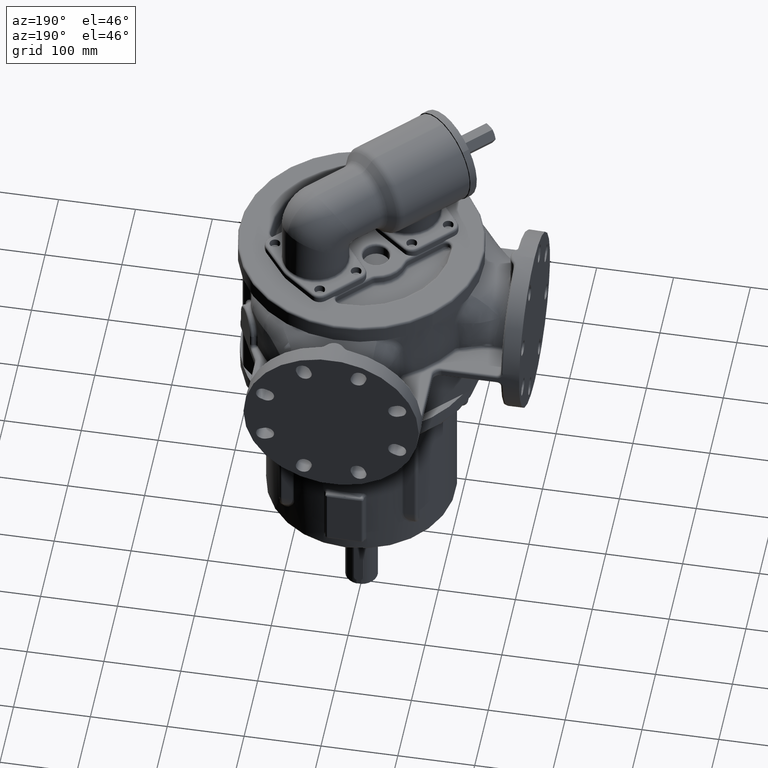
[diagram: clean part render]
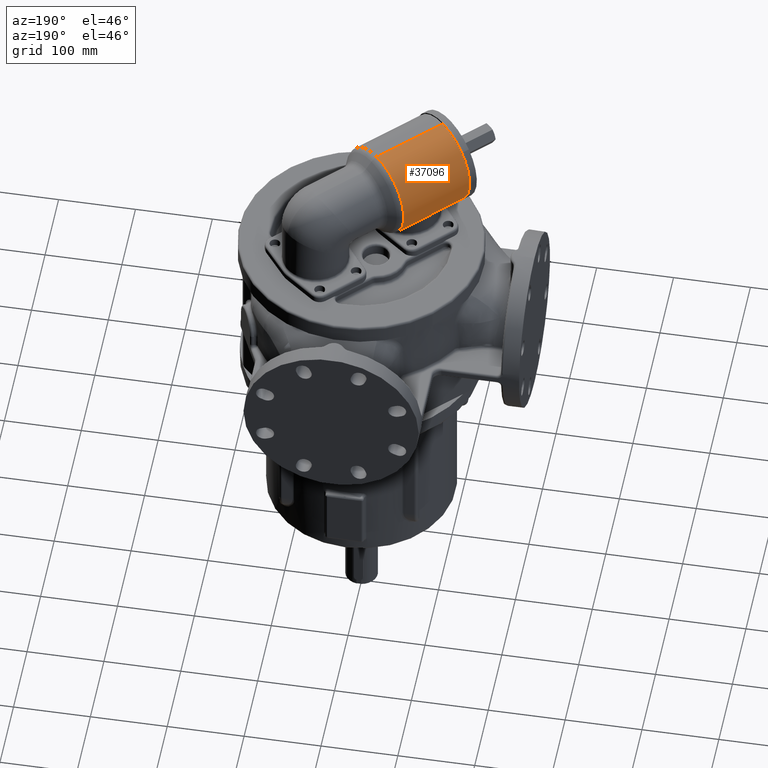
[diagram: same view with one face highlighted and labeled with its STEP entity id]
A machine part, auxiliary view. The second image highlights one B-rep face of the part: STEP entity #37096.
In plain terms, the highlighted cylindrical surface (partial cylindrical patch) has radius 60 mm, axis along (-0.7071, -0.7071, 0).
Its self-contained STEP definition (entity closure, byte-faithful):
#3801=CARTESIAN_POINT('',(-8.980256121069E1,-8.980256121069E1,2.82E2));
#3802=DIRECTION('',(-7.071067811865E-1,-7.071067811865E-1,0.E0));
#3803=DIRECTION('',(0.E0,0.E0,1.E0));
#3804=AXIS2_PLACEMENT_3D('',#3801,#3802,#3803);
#3806=DIRECTION('',(-7.071067811866E-1,-7.071067811865E-1,-1.407158833899E-10));
#3807=VECTOR('',#3806,8.E0);
#3808=CARTESIAN_POINT('',(-8.414570696120E1,-8.414570696120E1,
2.220000000011E2));
#3809=LINE('',#3808,#3807);
#3810=CARTESIAN_POINT('',(-1.767766952966E1,-1.767766952966E1,
2.220000000012E2));
#3811=CARTESIAN_POINT('',(-1.787476425812E1,-1.748057490932E1,
2.220000000251E2));
#3812=CARTESIAN_POINT('',(-1.827306282149E1,-1.709025577864E1,
2.220038846349E2));
#3813=CARTESIAN_POINT('',(-1.888275558777E1,-1.651651755162E1,
2.220213862247E2));
#3814=CARTESIAN_POINT('',(-1.950457816283E1,-1.595468830284E1,
2.220505791074E2));
#3815=CARTESIAN_POINT('',(-2.013851614066E1,-1.540484982666E1,
2.220914819572E2));
#3816=CARTESIAN_POINT('',(-2.078473426357E1,-1.486695904062E1,
2.221441326485E2));
#3817=CARTESIAN_POINT('',(-2.144330798580E1,-1.434108145134E1,
2.222085731498E2));
#3818=CARTESIAN_POINT('',(-2.211434841744E1,-1.382728027400E1,
2.222848548912E2));
#3819=CARTESIAN_POINT('',(-2.279798211488E1,-1.332563701110E1,
2.223730386285E2));
#3820=CARTESIAN_POINT('',(-2.349433848347E1,-1.283625986149E1,
2.224731921880E2));
#3821=CARTESIAN_POINT('',(-2.420355644043E1,-1.235927747240E1,
2.225853908174E2));
#3822=CARTESIAN_POINT('',(-2.492578094452E1,-1.189484272761E1,
2.227097160824E2));
#3823=CARTESIAN_POINT('',(-2.566116180063E1,-1.144313319597E1,
2.228462549644E2));
#3824=CARTESIAN_POINT('',(-2.640985190670E1,-1.100435183189E1,
2.229950987828E2));
#3825=CARTESIAN_POINT('',(-2.717200553765E1,-1.057872680341E1,
2.231563420934E2));
#3826=CARTESIAN_POINT('',(-2.794777668242E1,-1.016651331139E1,
2.233300811967E2));
#3827=CARTESIAN_POINT('',(-2.873731685008E1,-9.767994135064E0,
2.235164125312E2));
#3828=CARTESIAN_POINT('',(-2.954077276926E1,-9.383480024503E0,
2.237154308844E2));
#3829=CARTESIAN_POINT('',(-3.035828390792E1,-9.013309626426E0,
2.239272274597E2));
#3830=CARTESIAN_POINT('',(-3.118997972686E1,-8.657850940934E0,
2.241518873992E2));
#3831=CARTESIAN_POINT('',(-3.203597657703E1,-8.317501405217E0,
2.243894871823E2));
#3832=CARTESIAN_POINT('',(-3.289637445358E1,-7.992687730382E0,
2.246400917783E2));
#3833=CARTESIAN_POINT('',(-3.377125283108E1,-7.683865773007E0,
2.249037512954E2));
#3834=CARTESIAN_POINT('',(-3.466066654594E1,-7.391520999525E0,
2.251804971236E2));
#3835=CARTESIAN_POINT('',(-3.556464116587E1,-7.116167635402E0,
2.254703378439E2));
#3836=CARTESIAN_POINT('',(-3.648316813631E1,-6.858347379060E0,
2.257732548035E2));
#3837=CARTESIAN_POINT('',(-3.741619766835E1,-6.618628585574E0,
2.260891965222E2));
#3838=CARTESIAN_POINT('',(-3.836363283387E1,-6.397604686889E0,
2.264180730223E2));
#3839=CARTESIAN_POINT('',(-3.932532262666E1,-6.195891382647E0,
2.267597496908E2));
#3840=CARTESIAN_POINT('',(-4.030105468152E1,-6.014123061915E0,
2.271140407537E2));
#3841=CARTESIAN_POINT('',(-4.129054365946E1,-5.852949848131E0,
2.274807005815E2));
#3842=CARTESIAN_POINT('',(-4.229342348076E1,-5.713032196010E0,
2.278594161642E2));
#3843=CARTESIAN_POINT('',(-4.330923775254E1,-5.595034253053E0,
2.282497989027E2));
#3844=CARTESIAN_POINT('',(-4.433742990109E1,-5.499615933139E0,
2.286513762376E2));
#3845=CARTESIAN_POINT('',(-4.537732653766E1,-5.427425327189E0,
2.290635800741E2));
#3846=CARTESIAN_POINT('',(-4.642813002823E1,-5.379087089539E0,
2.294857393070E2));
#3847=CARTESIAN_POINT('',(-4.748890882611E1,-5.355189647743E0,
2.299170719752E2));
#3848=CARTESIAN_POINT('',(-4.855858833612E1,-5.356270826193E0,
2.303566783343E2));
#3849=CARTESIAN_POINT('',(-4.963593398985E1,-5.382803517962E0,
2.308035307087E2));
#3850=CARTESIAN_POINT('',(-5.071955405855E1,-5.435177451671E0,
2.312564735597E2));
#3851=CARTESIAN_POINT('',(-5.180789946286E1,-5.513681113156E0,
2.317142239706E2));
#3852=CARTESIAN_POINT('',(-5.289926606603E1,-5.618483295101E0,
2.321753751919E2));
#3853=CARTESIAN_POINT('',(-5.399179683223E1,-5.749616987051E0,
2.326384010224E2));
#3854=CARTESIAN_POINT('',(-5.508351023493E1,-5.906963604585E0,
2.331016753379E2));
#3855=CARTESIAN_POINT('',(-5.617232549925E1,-6.090241125929E0,
2.335634925573E2));
#3856=CARTESIAN_POINT('',(-5.725609185478E1,-6.298995976080E0,
2.340220922323E2));
#3857=CARTESIAN_POINT('',(-5.833262806539E1,-6.532604339497E0,
2.344756881843E2));
#3858=CARTESIAN_POINT('',(-5.939977617459E1,-6.790277690481E0,
2.349225074516E2));
#3859=CARTESIAN_POINT('',(-6.045544670537E1,-7.071075120560E0,
2.353608253751E2));
#3860=CARTESIAN_POINT('',(-6.149766388735E1,-7.373921918961E0,
2.357890003084E2));
#3861=CARTESIAN_POINT('',(-6.252462026375E1,-7.697641372334E0,
2.362055085644E2));
#3862=CARTESIAN_POINT('',(-6.353471022153E1,-8.040981505217E0,
2.366089713661E2));
#3863=CARTESIAN_POINT('',(-6.452655530752E1,-8.402645907398E0,
2.369981741970E2));
#3864=CARTESIAN_POINT('',(-6.549902416799E1,-8.781326468900E0,
2.373720803055E2));
#3865=CARTESIAN_POINT('',(-6.645125094893E1,-9.175740689636E0,
2.377298382787E2));
#3866=CARTESIAN_POINT('',(-6.738262074136E1,-9.584652520138E0,
2.380707760968E2));
#3867=CARTESIAN_POINT('',(-6.829275893683E1,-1.000689514822E1,
2.383943926587E2));
#3868=CARTESIAN_POINT('',(-6.918151441945E1,-1.044138972383E1,
2.387003443301E2));
#3869=CARTESIAN_POINT('',(-7.004894051962E1,-1.088716116125E1,
2.389884284405E2));
#3870=CARTESIAN_POINT('',(-7.089526302554E1,-1.134334229098E1,
2.392585626488E2));
#3871=CARTESIAN_POINT('',(-7.172085483577E1,-1.180917841560E1,
2.395107657206E2));
#3872=CARTESIAN_POINT('',(-7.252621034715E1,-1.228402887445E1,
2.397451379479E2));
#3873=CARTESIAN_POINT('',(-7.331191978381E1,-1.276736491374E1,
2.399618423117E2));
#3874=CARTESIAN_POINT('',(-7.407864552994E1,-1.325876446990E1,
2.401610879517E2));
#3875=CARTESIAN_POINT('',(-7.482710219010E1,-1.375790743751E1,
2.403431150939E2));
#3876=CARTESIAN_POINT('',(-7.555803989895E1,-1.426457068300E1,
2.405081819939E2));
#3877=CARTESIAN_POINT('',(-7.627222887923E1,-1.477862211036E1,
2.406565532447E2));
#3878=CARTESIAN_POINT('',(-7.697044687985E1,-1.530001360555E1,
2.407884910311E2));
#3879=CARTESIAN_POINT('',(-7.765346853879E1,-1.582877502627E1,
2.409042472246E2));
#3880=CARTESIAN_POINT('',(-7.832205691402E1,-1.636500950770E1,
2.410040563950E2));
#3881=CARTESIAN_POINT('',(-7.897695645929E1,-1.690888837620E1,
2.410881305740E2));
#3882=CARTESIAN_POINT('',(-7.961888706182E1,-1.746064664230E1,
2.411566548230E2));
#3883=CARTESIAN_POINT('',(-8.024853984983E1,-1.802057757859E1,
2.412097853261E2));
#3884=CARTESIAN_POINT('',(-8.086657326842E1,-1.858903015216E1,
2.412476460273E2));
#3885=CARTESIAN_POINT('',(-8.147360959440E1,-1.916640593780E1,
2.412703264953E2));
#3886=CARTESIAN_POINT('',(-8.207023197631E1,-1.975315607139E1,
2.412778806811E2));
#3887=CARTESIAN_POINT('',(-8.265698167353E1,-2.034977839745E1,
2.412703262042E2));
#3888=CARTESIAN_POINT('',(-8.323435651242E1,-2.095681411050E1,
2.412476454814E2));
#3889=CARTESIAN_POINT('',(-8.380280773572E1,-2.157484641486E1,
2.412097846011E2));
#3890=CARTESIAN_POINT('',(-8.436273714579E1,-2.220449779629E1,
2.411566540087E2));
#3891=CARTESIAN_POINT('',(-8.491449394786E1,-2.284642695217E1,
2.410881297492E2));
#3892=CARTESIAN_POINT('',(-8.545837147335E1,-2.350132509305E1,
2.410040556198E2));
#3893=CARTESIAN_POINT('',(-8.599460472271E1,-2.416991210295E1,
2.409042465533E2));
#3894=CARTESIAN_POINT('',(-8.652336503155E1,-2.485293245108E1,
2.407884905123E2));
#3895=CARTESIAN_POINT('',(-8.704475554478E1,-2.555114921657E1,
2.406565529175E2));
#3896=CARTESIAN_POINT('',(-8.755880612284E1,-2.626533704956E1,
2.405081818890E2));
#3897=CARTESIAN_POINT('',(-8.806546866789E1,-2.699627374525E1,
2.403431152192E2));
#3898=CARTESIAN_POINT('',(-8.856461103059E1,-2.774472945787E1,
2.401610883251E2));
#3899=CARTESIAN_POINT('',(-8.905601017535E1,-2.851145448290E1,
2.399618429045E2));
#3900=CARTESIAN_POINT('',(-8.953934607112E1,-2.929716357926E1,
2.397451386746E2));
#3901=CARTESIAN_POINT('',(-9.001419658120E1,-3.010251906443E1,
2.395107664940E2));
#3902=CARTESIAN_POINT('',(-9.048003272133E1,-3.092811078628E1,
2.392585634854E2));
#3903=CARTESIAN_POINT('',(-9.093621389730E1,-3.177443324928E1,
2.389884293276E2));
#3904=CARTESIAN_POINT('',(-9.138198548263E1,-3.264185950225E1,
2.387003452013E2));
#3905=CARTESIAN_POINT('',(-9.181648031511E1,-3.353061538865E1,
2.383943934184E2));
#3906=CARTESIAN_POINT('',(-9.223872326296E1,-3.444075417123E1,
2.380707766682E2));
#3907=CARTESIAN_POINT('',(-9.264763546593E1,-3.537212473886E1,
2.377298385795E2));
#3908=CARTESIAN_POINT('',(-9.304205009163E1,-3.632435247008E1,
2.373720802539E2));
#3909=CARTESIAN_POINT('',(-9.342073106319E1,-3.729682243248E1,
2.369981737142E2));
#3910=CARTESIAN_POINT('',(-9.378239586543E1,-3.828866874313E1,
2.366089703881E2));
#3911=CARTESIAN_POINT('',(-9.412573637010E1,-3.929876001491E1,
2.362055070420E2));
#3912=CARTESIAN_POINT('',(-9.444945614840E1,-4.032571776350E1,
2.357889982052E2));
#3913=CARTESIAN_POINT('',(-9.475230320459E1,-4.136793634131E1,
2.353608226678E2));
#3914=CARTESIAN_POINT('',(-9.503310082245E1,-4.242360825261E1,
2.349225041417E2));
#3915=CARTESIAN_POINT('',(-9.529077428698E1,-4.349075769656E1,
2.344756842903E2));
#3916=CARTESIAN_POINT('',(-9.552438268442E1,-4.456729517156E1,
2.340220877842E2));
#3917=CARTESIAN_POINT('',(-9.573313748560E1,-4.565106270076E1,
2.335634875949E2));
#3918=CARTESIAN_POINT('',(-9.591641488858E1,-4.673987903413E1,
2.331016699143E2));
#3919=CARTESIAN_POINT('',(-9.607376132494E1,-4.783159339130E1,
2.326383951970E2));
#3920=CARTESIAN_POINT('',(-9.620489477746E1,-4.892412499184E1,
2.321753690264E2));
#3921=CARTESIAN_POINT('',(-9.630969666647E1,-5.001549230673E1,
2.317142175269E2));
#3922=CARTESIAN_POINT('',(-9.638819999822E1,-5.110383830262E1,
2.312564669027E2));
#3923=CARTESIAN_POINT('',(-9.644057357325E1,-5.218745884720E1,
2.308035239005E2));
#3924=CARTESIAN_POINT('',(-9.646710588326E1,-5.326480486578E1,
2.303566714334E2));
#3925=CARTESIAN_POINT('',(-9.646818666190E1,-5.433448463456E1,
2.299170650357E2));
#3926=CARTESIAN_POINT('',(-9.644428881527E1,-5.539526359281E1,
2.294857323811E2));
#3927=CARTESIAN_POINT('',(-9.639595017253E1,-5.644606715305E1,
2.290635732086E2));
#3928=CARTESIAN_POINT('',(-9.632375916539E1,-5.748596377444E1,
2.286513694747E2));
#3929=CARTESIAN_POINT('',(-9.622834045157E1,-5.851415582806E1,
2.282497922800E2));
#3930=CARTESIAN_POINT('',(-9.611034213084E1,-5.952996993306E1,
2.278594097160E2));
#3931=CARTESIAN_POINT('',(-9.597042411871E1,-6.053284952225E1,
2.274806943368E2));
#3932=CARTESIAN_POINT('',(-9.580925056550E1,-6.152233820742E1,
2.271140347379E2));
#3933=CARTESIAN_POINT('',(-9.562748192808E1,-6.249806991308E1,
2.267597439255E2));
#3934=CARTESIAN_POINT('',(-9.542576833556E1,-6.345975930706E1,
2.264180675257E2));
#3935=CARTESIAN_POINT('',(-9.520474417634E1,-6.440719402920E1,
2.260891913083E2));
#3936=CARTESIAN_POINT('',(-9.496502515215E1,-6.534022307697E1,
2.257732498834E2));
#3937=CARTESIAN_POINT('',(-9.470720469643E1,-6.625874952568E1,
2.254703332259E2));
#3938=CARTESIAN_POINT('',(-9.443185116753E1,-6.716272359225E1,
2.251804928132E2));
#3939=CARTESIAN_POINT('',(-9.413950626162E1,-6.805213672594E1,
2.249037472945E2));
#3940=CARTESIAN_POINT('',(-9.383068420587E1,-6.892701449755E1,
2.246400880870E2));
#3941=CARTESIAN_POINT('',(-9.350587046789E1,-6.978741174639E1,
2.243894837984E2));
#3942=CARTESIAN_POINT('',(-9.316552090570E1,-7.063340795175E1,
2.241518843185E2));
#3943=CARTESIAN_POINT('',(-9.281006222717E1,-7.146510311161E1,
2.239272246753E2));
#3944=CARTESIAN_POINT('',(-9.243989187096E1,-7.228261357972E1,
2.237154283879E2));
#3945=CARTESIAN_POINT('',(-9.205537783825E1,-7.308606881934E1,
2.235164103129E2));
#3946=CARTESIAN_POINT('',(-9.165685877587E1,-7.387560830184E1,
2.233300792453E2));
#3947=CARTESIAN_POINT('',(-9.124464543026E1,-7.465137875777E1,
2.231563403959E2));
#3948=CARTESIAN_POINT('',(-9.081902058196E1,-7.541353169881E1,
2.229950973250E2));
#3949=CARTESIAN_POINT('',(-9.038023943289E1,-7.616222111619E1,
2.228462537312E2));
#3950=CARTESIAN_POINT('',(-8.992853014983E1,-7.689760128763E1,
2.227097150577E2));
#3951=CARTESIAN_POINT('',(-8.946409568456E1,-7.761982511065E1,
2.225853899841E2));
#3952=CARTESIAN_POINT('',(-8.898711360572E1,-7.832904239494E1,
2.224731915279E2));
#3953=CARTESIAN_POINT('',(-8.849773679702E1,-7.902539810248E1,
2.223730381229E2));
#3954=CARTESIAN_POINT('',(-8.799609391641E1,-7.970903113556E1,
2.222848545226E2));
#3955=CARTESIAN_POINT('',(-8.748229311840E1,-8.038007095391E1,
2.222085728937E2));
#3956=CARTESIAN_POINT('',(-8.695641598174E1,-8.103864401749E1,
2.221441324916E2));
#3957=CARTESIAN_POINT('',(-8.641852570361E1,-8.168486147445E1,
2.220914818776E2));
#3958=CARTESIAN_POINT('',(-8.586868742222E1,-8.231879919187E1,
2.220505790604E2));
#3959=CARTESIAN_POINT('',(-8.530685840707E1,-8.294062147649E1,
2.220213862049E2));
#3960=CARTESIAN_POINT('',(-8.473312047135E1,-8.355031391247E1,
2.220038846323E2));
#3961=CARTESIAN_POINT('',(-8.434280150524E1,-8.394861231179E1,
2.220000000245E2));
#3962=CARTESIAN_POINT('',(-8.414570696120E1,-8.414570696120E1,
2.220000000011E2));
#3964=DIRECTION('',(-7.071067811865E-1,-7.071067811865E-1,1.081389138139E-9));
#3965=VECTOR('',#3964,1.085786437627E0);
#3966=CARTESIAN_POINT('',(-1.690990257670E1,-1.690990257670E1,2.22E2));
#3967=LINE('',#3966,#3965);
#3968=CARTESIAN_POINT('',(-1.690990257670E1,-1.690990257670E1,2.82E2));
#3969=DIRECTION('',(7.071067811865E-1,7.071067811865E-1,0.E0));
#3970=DIRECTION('',(0.E0,0.E0,-1.E0));
#3971=AXIS2_PLACEMENT_3D('',#3968,#3969,#3970);
#3973=DIRECTION('',(-7.071067811865E-1,-7.071067811865E-1,0.E0));
#3974=VECTOR('',#3973,1.030857864376E2);
#3975=CARTESIAN_POINT('',(-1.690990257670E1,-1.690990257670E1,3.42E2));
#3976=LINE('',#3975,#3974);
#3987=CARTESIAN_POINT('',(-8.414570696120E1,-8.414570696120E1,
2.220000000011E2));
#26797=CARTESIAN_POINT('',(-1.690990257670E1,-1.690990257670E1,2.22E2));
#26799=VERTEX_POINT('',#26797);
#26805=CARTESIAN_POINT('',(-1.690990257670E1,-1.690990257670E1,3.42E2));
#26807=VERTEX_POINT('',#26805);
#26916=CARTESIAN_POINT('',(-1.767766952966E1,-1.767766952966E1,
2.220000000012E2));
#26917=VERTEX_POINT('',#26916);
#26934=CARTESIAN_POINT('',(-8.980256121069E1,-8.980256121069E1,2.22E2));
#26935=CARTESIAN_POINT('',(-8.980256121069E1,-8.980256121069E1,3.42E2));
#26936=VERTEX_POINT('',#26934);
#26937=VERTEX_POINT('',#26935);
#26938=VERTEX_POINT('',#3987);
#37078=CARTESIAN_POINT('',(2.315774708386E1,2.315774708386E1,2.82E2));
#37079=DIRECTION('',(-7.071067811865E-1,-7.071067811865E-1,0.E0));
#37080=DIRECTION('',(0.E0,0.E0,-1.E0));
#37081=AXIS2_PLACEMENT_3D('',#37078,#37079,#37080);
#37082=CYLINDRICAL_SURFACE('',#37081,6.E1);
#37084=ORIENTED_EDGE('',*,*,#37083,.T.);
#37086=ORIENTED_EDGE('',*,*,#37085,.F.);
#37088=ORIENTED_EDGE('',*,*,#37087,.F.);
#37090=ORIENTED_EDGE('',*,*,#37089,.F.);
#37091=ORIENTED_EDGE('',*,*,#37073,.T.);
#37093=ORIENTED_EDGE('',*,*,#37092,.T.);
#37094=EDGE_LOOP('',(#37084,#37086,#37088,#37090,#37091,#37093));
#37095=FACE_OUTER_BOUND('',#37094,.F.);
#37096=ADVANCED_FACE('',(#37095),#37082,.T.);
#3805=CIRCLE('',#3804,6.E1);
#3963=B_SPLINE_CURVE_WITH_KNOTS('',3,(#3810,#3811,#3812,#3813,#3814,#3815,#3816,
#3817,#3818,#3819,#3820,#3821,#3822,#3823,#3824,#3825,#3826,#3827,#3828,#3829,
#3830,#3831,#3832,#3833,#3834,#3835,#3836,#3837,#3838,#3839,#3840,#3841,#3842,
#3843,#3844,#3845,#3846,#3847,#3848,#3849,#3850,#3851,#3852,#3853,#3854,#3855,
#3856,#3857,#3858,#3859,#3860,#3861,#3862,#3863,#3864,#3865,#3866,#3867,#3868,
#3869,#3870,#3871,#3872,#3873,#3874,#3875,#3876,#3877,#3878,#3879,#3880,#3881,
#3882,#3883,#3884,#3885,#3886,#3887,#3888,#3889,#3890,#3891,#3892,#3893,#3894,
#3895,#3896,#3897,#3898,#3899,#3900,#3901,#3902,#3903,#3904,#3905,#3906,#3907,
#3908,#3909,#3910,#3911,#3912,#3913,#3914,#3915,#3916,#3917,#3918,#3919,#3920,
#3921,#3922,#3923,#3924,#3925,#3926,#3927,#3928,#3929,#3930,#3931,#3932,#3933,
#3934,#3935,#3936,#3937,#3938,#3939,#3940,#3941,#3942,#3943,#3944,#3945,#3946,
#3947,#3948,#3949,#3950,#3951,#3952,#3953,#3954,#3955,#3956,#3957,#3958,#3959,
#3960,#3961,#3962),.UNSPECIFIED.,.F.,.F.,(4,1,1,1,1,1,1,1,1,1,1,1,1,1,1,1,1,1,1,
1,1,1,1,1,1,1,1,1,1,1,1,1,1,1,1,1,1,1,1,1,1,1,1,1,1,1,1,1,1,1,1,1,1,1,1,1,1,1,1,
1,1,1,1,1,1,1,1,1,1,1,1,1,1,1,1,1,1,1,1,1,1,1,1,1,1,1,1,1,1,1,1,1,1,1,1,1,1,1,1,
1,1,1,1,1,1,1,1,1,1,1,1,1,1,1,1,1,1,1,1,1,1,1,1,1,1,1,1,1,1,1,1,1,1,1,1,1,1,1,1,
1,1,1,1,1,1,1,1,1,1,1,4),(0.E0,6.666666666667E-3,1.333333333333E-2,2.E-2,
2.666666666667E-2,3.333333333333E-2,4.E-2,4.666666666667E-2,5.333333333333E-2,
6.E-2,6.666666666667E-2,7.333333333333E-2,8.E-2,8.666666666667E-2,
9.333333333333E-2,1.E-1,1.066666666667E-1,1.133333333333E-1,1.2E-1,
1.266666666667E-1,1.333333333333E-1,1.4E-1,1.466666666667E-1,1.533333333333E-1,
1.6E-1,1.666666666667E-1,1.733333333333E-1,1.8E-1,1.866666666667E-1,
1.933333333333E-1,2.E-1,2.066666666667E-1,2.133333333333E-1,2.2E-1,
2.266666666667E-1,2.333333333333E-1,2.4E-1,2.466666666667E-1,2.533333333333E-1,
2.6E-1,2.666666666667E-1,2.733333333333E-1,2.8E-1,2.866666666667E-1,
2.933333333333E-1,3.E-1,3.066666666667E-1,3.133333333333E-1,3.2E-1,
3.266666666667E-1,3.333333333333E-1,3.4E-1,3.466666666667E-1,3.533333333333E-1,
3.6E-1,3.666666666667E-1,3.733333333333E-1,3.8E-1,3.866666666667E-1,
3.933333333333E-1,4.E-1,4.066666666667E-1,4.133333333333E-1,4.2E-1,
4.266666666667E-1,4.333333333333E-1,4.4E-1,4.466666666667E-1,4.533333333333E-1,
4.6E-1,4.666666666667E-1,4.733333333333E-1,4.8E-1,4.866666666667E-1,
4.933333333333E-1,5.E-1,5.066666666667E-1,5.133333333333E-1,5.2E-1,
5.266666666667E-1,5.333333333333E-1,5.4E-1,5.466666666667E-1,5.533333333333E-1,
5.6E-1,5.666666666667E-1,5.733333333333E-1,5.8E-1,5.866666666667E-1,
5.933333333333E-1,6.E-1,6.066666666667E-1,6.133333333333E-1,6.2E-1,
6.266666666667E-1,6.333333333333E-1,6.4E-1,6.466666666667E-1,6.533333333333E-1,
6.6E-1,6.666666666667E-1,6.733333333333E-1,6.8E-1,6.866666666667E-1,
6.933333333333E-1,7.E-1,7.066666666667E-1,7.133333333333E-1,7.2E-1,
7.266666666667E-1,7.333333333333E-1,7.4E-1,7.466666666667E-1,7.533333333333E-1,
7.6E-1,7.666666666667E-1,7.733333333333E-1,7.8E-1,7.866666666667E-1,
7.933333333333E-1,8.E-1,8.066666666667E-1,8.133333333333E-1,8.2E-1,
8.266666666667E-1,8.333333333333E-1,8.4E-1,8.466666666667E-1,8.533333333333E-1,
8.6E-1,8.666666666667E-1,8.733333333333E-1,8.8E-1,8.866666666667E-1,
8.933333333333E-1,9.E-1,9.066666666667E-1,9.133333333333E-1,9.2E-1,
9.266666666667E-1,9.333333333333E-1,9.4E-1,9.466666666667E-1,9.533333333333E-1,
9.6E-1,9.666666666667E-1,9.733333333333E-1,9.8E-1,9.866666666667E-1,
9.933333333333E-1,1.E0),.UNSPECIFIED.);
#3972=CIRCLE('',#3971,6.E1);
#37073=EDGE_CURVE('',#26799,#26807,#3972,.T.);
#37083=EDGE_CURVE('',#26937,#26936,#3805,.T.);
#37085=EDGE_CURVE('',#26938,#26936,#3809,.T.);
#37087=EDGE_CURVE('',#26917,#26938,#3963,.T.);
#37089=EDGE_CURVE('',#26799,#26917,#3967,.T.);
#37092=EDGE_CURVE('',#26807,#26937,#3976,.T.);